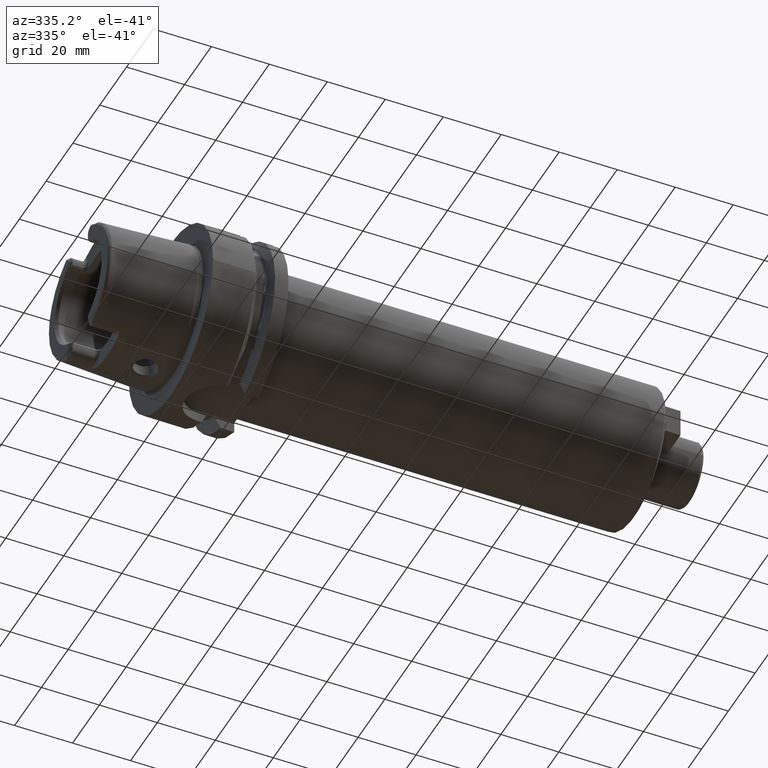
[diagram: clean part render]
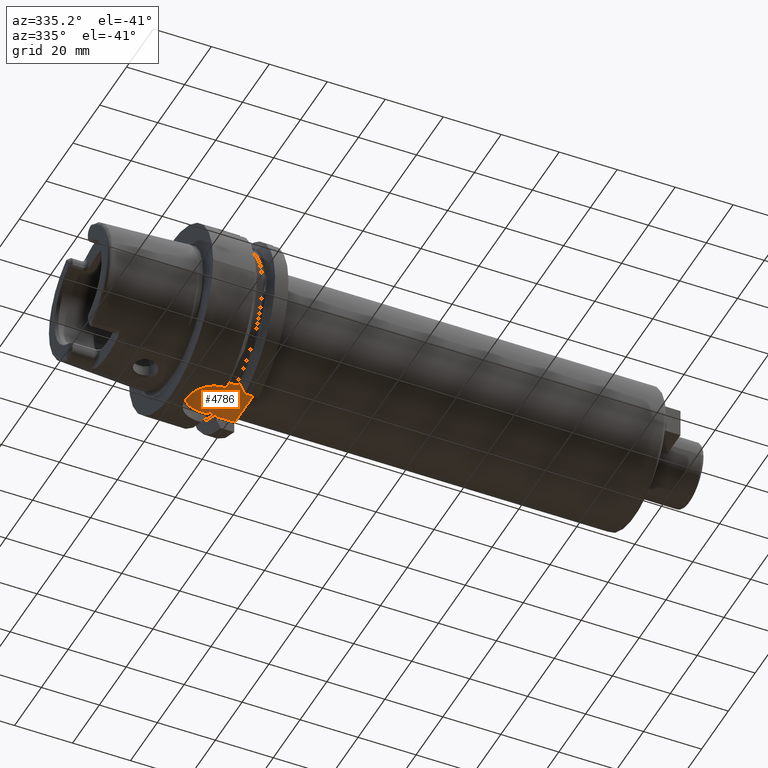
[diagram: same view with one face highlighted and labeled with its STEP entity id]
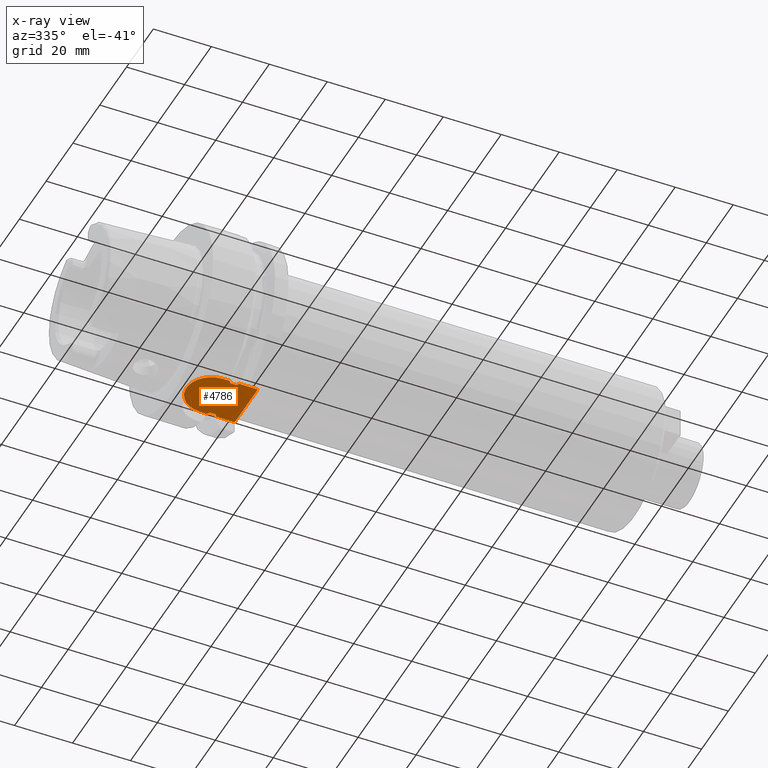
[diagram: x-ray of the same camera — body ghosted, the highlighted face saturated]
A machine part, auxiliary view. The second image highlights one B-rep face of the part: STEP entity #4786.
The next image is the same camera in x-ray: the body ghosted, the highlighted face saturated — about 0% of this face is hidden behind the body in this view.
In plain terms, the highlighted planar face has unit normal (0, 0, -1).
Its self-contained STEP definition (entity closure, byte-faithful):
#1222=CARTESIAN_POINT('',(1.7125E1,7.7E0,-2.64E1));
#1223=CARTESIAN_POINT('',(1.709612257646E1,7.7E0,-2.64E1));
#1224=CARTESIAN_POINT('',(1.703809054195E1,7.708549788548E0,-2.64E1));
#1225=CARTESIAN_POINT('',(1.694576354836E1,7.752741855764E0,-2.64E1));
#1226=CARTESIAN_POINT('',(1.686145167985E1,7.821144618954E0,-2.64E1));
#1227=CARTESIAN_POINT('',(1.678169591401E1,7.910255407197E0,-2.64E1));
#1228=CARTESIAN_POINT('',(1.670585865658E1,8.018731508895E0,-2.64E1));
#1229=CARTESIAN_POINT('',(1.663386002384E1,8.144595739092E0,-2.64E1));
#1230=CARTESIAN_POINT('',(1.656565613315E1,8.286316729889E0,-2.64E1));
#1231=CARTESIAN_POINT('',(1.650080228847E1,8.443935370899E0,-2.64E1));
#1232=CARTESIAN_POINT('',(1.646027482334E1,8.558057187343E0,-2.64E1));
#1233=CARTESIAN_POINT('',(1.644062313526E1,8.6175E0,-2.64E1));
#1296=CARTESIAN_POINT('',(1.644062313526E1,-8.6175E0,-2.64E1));
#1297=CARTESIAN_POINT('',(1.646078603879E1,-8.556510852770E0,-2.64E1));
#1298=CARTESIAN_POINT('',(1.650227386064E1,-8.439948273349E0,-2.64E1));
#1299=CARTESIAN_POINT('',(1.656805348335E1,-8.280864278287E0,-2.64E1));
#1300=CARTESIAN_POINT('',(1.663684500818E1,-8.138886080904E0,-2.64E1));
#1301=CARTESIAN_POINT('',(1.670898389576E1,-8.013810014671E0,-2.64E1));
#1302=CARTESIAN_POINT('',(1.678453793855E1,-7.906721865662E0,-2.64E1));
#1303=CARTESIAN_POINT('',(1.686362062870E1,-7.819127635624E0,-2.64E1));
#1304=CARTESIAN_POINT('',(1.694730615110E1,-7.751879650101E0,-2.64E1));
#1305=CARTESIAN_POINT('',(1.703817130297E1,-7.708637437381E0,-2.64E1));
#1306=CARTESIAN_POINT('',(1.709608612766E1,-7.7E0,-2.64E1));
#1307=CARTESIAN_POINT('',(1.7125E1,-7.7E0,-2.64E1));
#1341=CARTESIAN_POINT('',(1.955937686474E1,8.6175E0,-2.64E1));
#1347=CARTESIAN_POINT('',(1.955937686474E1,8.6175E0,-2.64E1));
#1348=CARTESIAN_POINT('',(1.953933692943E1,8.556882809475E0,-2.64E1));
#1349=CARTESIAN_POINT('',(1.949803643853E1,8.440751828791E0,-2.64E1));
#1350=CARTESIAN_POINT('',(1.943198239289E1,8.280902876688E0,-2.64E1));
#1351=CARTESIAN_POINT('',(1.936289962713E1,8.138372043109E0,-2.64E1));
#1352=CARTESIAN_POINT('',(1.929044179409E1,8.012872381152E0,-2.64E1));
#1353=CARTESIAN_POINT('',(1.921473346325E1,7.905832703978E0,-2.64E1));
#1354=CARTESIAN_POINT('',(1.913579091836E1,7.818493807110E0,-2.64E1));
#1355=CARTESIAN_POINT('',(1.905155273254E1,7.751296731883E0,-2.64E1));
#1356=CARTESIAN_POINT('',(1.896325315553E1,7.709235333598E0,-2.64E1));
#1357=CARTESIAN_POINT('',(1.890455004185E1,7.7E0,-2.64E1));
#1358=CARTESIAN_POINT('',(1.8875E1,7.7E0,-2.64E1));
#1418=CARTESIAN_POINT('',(1.8875E1,-7.7E0,-2.64E1));
#1419=CARTESIAN_POINT('',(1.890473731311E1,-7.7E0,-2.64E1));
#1420=CARTESIAN_POINT('',(1.896439553552E1,-7.709074097953E0,-2.64E1));
#1421=CARTESIAN_POINT('',(1.905895356645E1,-7.755593365771E0,-2.64E1));
#1422=CARTESIAN_POINT('',(1.914506350406E1,-7.827325160610E0,-2.64E1));
#1423=CARTESIAN_POINT('',(1.922569730521E1,-7.919730067314E0,-2.64E1));
#1424=CARTESIAN_POINT('',(1.930098420168E1,-8.029803274102E0,-2.64E1));
#1425=CARTESIAN_POINT('',(1.937115269578E1,-8.154449512708E0,-2.64E1));
#1426=CARTESIAN_POINT('',(1.943699388158E1,-8.292566470765E0,-2.64E1));
#1427=CARTESIAN_POINT('',(1.949974575456E1,-8.445548604297E0,-2.64E1));
#1428=CARTESIAN_POINT('',(1.953984256144E1,-8.558412255131E0,-2.64E1));
#1429=CARTESIAN_POINT('',(1.955937686474E1,-8.6175E0,-2.64E1));
#1461=DIRECTION('',(1.E0,0.E0,0.E0));
#1462=VECTOR('',#1461,6.440623135263E0);
#1463=CARTESIAN_POINT('',(1.955937686474E1,8.6175E0,-2.64E1));
#1464=LINE('',#1463,#1462);
#1465=DIRECTION('',(-9.999999999999E-1,-2.676307863714E-7,-2.675980536163E-7));
#1466=VECTOR('',#1465,2.473123130251E0);
#1467=CARTESIAN_POINT('',(1.644062313526E1,8.6175E0,-2.64E1));
#1468=LINE('',#1467,#1466);
#1469=CARTESIAN_POINT('',(1.39675E1,-2.131628207280E-14,-2.640000139113E1));
#1470=DIRECTION('',(0.E0,0.E0,1.E0));
#1471=DIRECTION('',(-1.030668622693E-14,1.E0,0.E0));
#1472=AXIS2_PLACEMENT_3D('',#1469,#1470,#1471);
#1474=DIRECTION('',(9.999999999999E-1,-2.676237429886E-7,2.676050896565E-7));
#1475=VECTOR('',#1474,2.473123130989E0);
#1476=CARTESIAN_POINT('',(1.396750000427E1,-8.617499338134E0,
-2.640000066182E1));
#1477=LINE('',#1476,#1475);
#1478=DIRECTION('',(-1.E0,0.E0,0.E0));
#1479=VECTOR('',#1478,6.440623135263E0);
#1480=CARTESIAN_POINT('',(2.6E1,-8.6175E0,-2.64E1));
#1481=LINE('',#1480,#1479);
#1482=DIRECTION('',(1.E0,0.E0,0.E0));
#1483=VECTOR('',#1482,1.75E0);
#1484=CARTESIAN_POINT('',(1.7125E1,-7.7E0,-2.64E1));
#1485=LINE('',#1484,#1483);
#1495=DIRECTION('',(1.E0,0.E0,0.E0));
#1496=VECTOR('',#1495,1.75E0);
#1497=CARTESIAN_POINT('',(1.7125E1,7.7E0,-2.64E1));
#1498=LINE('',#1497,#1496);
#1700=DIRECTION('',(0.E0,-1.E0,0.E0));
#1701=VECTOR('',#1700,1.7235E1);
#1702=CARTESIAN_POINT('',(2.6E1,8.6175E0,-2.64E1));
#1703=LINE('',#1702,#1701);
#1873=CARTESIAN_POINT('',(1.644062313526E1,-8.6175E0,-2.64E1));
#1883=CARTESIAN_POINT('',(1.644062313526E1,8.6175E0,-2.64E1));
#3045=VERTEX_POINT('',#1883);
#3048=VERTEX_POINT('',#1873);
#3050=VERTEX_POINT('',#1341);
#3051=CARTESIAN_POINT('',(2.6E1,8.6175E0,-2.64E1));
#3053=VERTEX_POINT('',#3051);
#3056=CARTESIAN_POINT('',(2.6E1,-8.6175E0,-2.64E1));
#3058=VERTEX_POINT('',#3056);
#3059=CARTESIAN_POINT('',(1.955937686474E1,-8.6175E0,-2.64E1));
#3060=VERTEX_POINT('',#3059);
#3063=CARTESIAN_POINT('',(1.396750000427E1,-8.617499338134E0,
-2.640000066182E1));
#3064=VERTEX_POINT('',#3063);
#3069=CARTESIAN_POINT('',(1.396750000501E1,8.617499338116E0,-2.640000066180E1));
#3070=VERTEX_POINT('',#3069);
#3137=CARTESIAN_POINT('',(1.7125E1,-7.7E0,-2.64E1));
#3138=CARTESIAN_POINT('',(1.8875E1,-7.7E0,-2.64E1));
#3139=VERTEX_POINT('',#3137);
#3140=VERTEX_POINT('',#3138);
#3141=CARTESIAN_POINT('',(1.7125E1,7.7E0,-2.64E1));
#3142=CARTESIAN_POINT('',(1.8875E1,7.7E0,-2.64E1));
#3143=VERTEX_POINT('',#3141);
#3144=VERTEX_POINT('',#3142);
#4760=CARTESIAN_POINT('',(0.E0,0.E0,-2.64E1));
#4761=DIRECTION('',(0.E0,0.E0,-1.E0));
#4762=DIRECTION('',(1.E0,0.E0,0.E0));
#4763=AXIS2_PLACEMENT_3D('',#4760,#4761,#4762);
#4764=PLANE('',#4763);
#4765=ORIENTED_EDGE('',*,*,#4702,.F.);
#4766=ORIENTED_EDGE('',*,*,#4715,.T.);
#4768=ORIENTED_EDGE('',*,*,#4767,.F.);
#4769=ORIENTED_EDGE('',*,*,#4614,.T.);
#4771=ORIENTED_EDGE('',*,*,#4770,.T.);
#4773=ORIENTED_EDGE('',*,*,#4772,.T.);
#4775=ORIENTED_EDGE('',*,*,#4774,.T.);
#4776=ORIENTED_EDGE('',*,*,#4645,.T.);
#4778=ORIENTED_EDGE('',*,*,#4777,.T.);
#4779=ORIENTED_EDGE('',*,*,#4747,.T.);
#4781=ORIENTED_EDGE('',*,*,#4780,.F.);
#4783=ORIENTED_EDGE('',*,*,#4782,.F.);
#4784=EDGE_LOOP('',(#4765,#4766,#4768,#4769,#4771,#4773,#4775,#4776,#4778,#4779,
#4781,#4783));
#4785=FACE_OUTER_BOUND('',#4784,.F.);
#4786=ADVANCED_FACE('',(#4785),#4764,.T.);
#1234=B_SPLINE_CURVE_WITH_KNOTS('',3,(#1222,#1223,#1224,#1225,#1226,#1227,#1228,
#1229,#1230,#1231,#1232,#1233),.UNSPECIFIED.,.F.,.F.,(4,1,1,1,1,1,1,1,1,4),
(0.E0,1.111111111111E-1,2.222222222222E-1,3.333333333333E-1,4.444444444444E-1,
5.555555555556E-1,6.666666666667E-1,7.777777777778E-1,8.888888888889E-1,1.E0),
.UNSPECIFIED.);
#1308=B_SPLINE_CURVE_WITH_KNOTS('',3,(#1296,#1297,#1298,#1299,#1300,#1301,#1302,
#1303,#1304,#1305,#1306,#1307),.UNSPECIFIED.,.F.,.F.,(4,1,1,1,1,1,1,1,1,4),
(0.E0,1.111111111111E-1,2.222222222222E-1,3.333333333333E-1,4.444444444444E-1,
5.555555555556E-1,6.666666666667E-1,7.777777777778E-1,8.888888888889E-1,1.E0),
.UNSPECIFIED.);
#1359=B_SPLINE_CURVE_WITH_KNOTS('',3,(#1347,#1348,#1349,#1350,#1351,#1352,#1353,
#1354,#1355,#1356,#1357,#1358),.UNSPECIFIED.,.F.,.F.,(4,1,1,1,1,1,1,1,1,4),
(0.E0,1.111111111111E-1,2.222222222222E-1,3.333333333333E-1,4.444444444444E-1,
5.555555555556E-1,6.666666666667E-1,7.777777777778E-1,8.888888888889E-1,1.E0),
.UNSPECIFIED.);
#1430=B_SPLINE_CURVE_WITH_KNOTS('',3,(#1418,#1419,#1420,#1421,#1422,#1423,#1424,
#1425,#1426,#1427,#1428,#1429),.UNSPECIFIED.,.F.,.F.,(4,1,1,1,1,1,1,1,1,4),
(0.E0,1.111111111111E-1,2.222222222222E-1,3.333333333333E-1,4.444444444444E-1,
5.555555555556E-1,6.666666666667E-1,7.777777777778E-1,8.888888888889E-1,1.E0),
.UNSPECIFIED.);
#1473=CIRCLE('',#1472,8.617497420067E0);
#4614=EDGE_CURVE('',#3143,#3045,#1234,.T.);
#4645=EDGE_CURVE('',#3048,#3139,#1308,.T.);
#4702=EDGE_CURVE('',#3050,#3053,#1464,.T.);
#4715=EDGE_CURVE('',#3050,#3144,#1359,.T.);
#4747=EDGE_CURVE('',#3140,#3060,#1430,.T.);
#4767=EDGE_CURVE('',#3143,#3144,#1498,.T.);
#4770=EDGE_CURVE('',#3045,#3070,#1468,.T.);
#4772=EDGE_CURVE('',#3070,#3064,#1473,.T.);
#4774=EDGE_CURVE('',#3064,#3048,#1477,.T.);
#4777=EDGE_CURVE('',#3139,#3140,#1485,.T.);
#4780=EDGE_CURVE('',#3058,#3060,#1481,.T.);
#4782=EDGE_CURVE('',#3053,#3058,#1703,.T.);